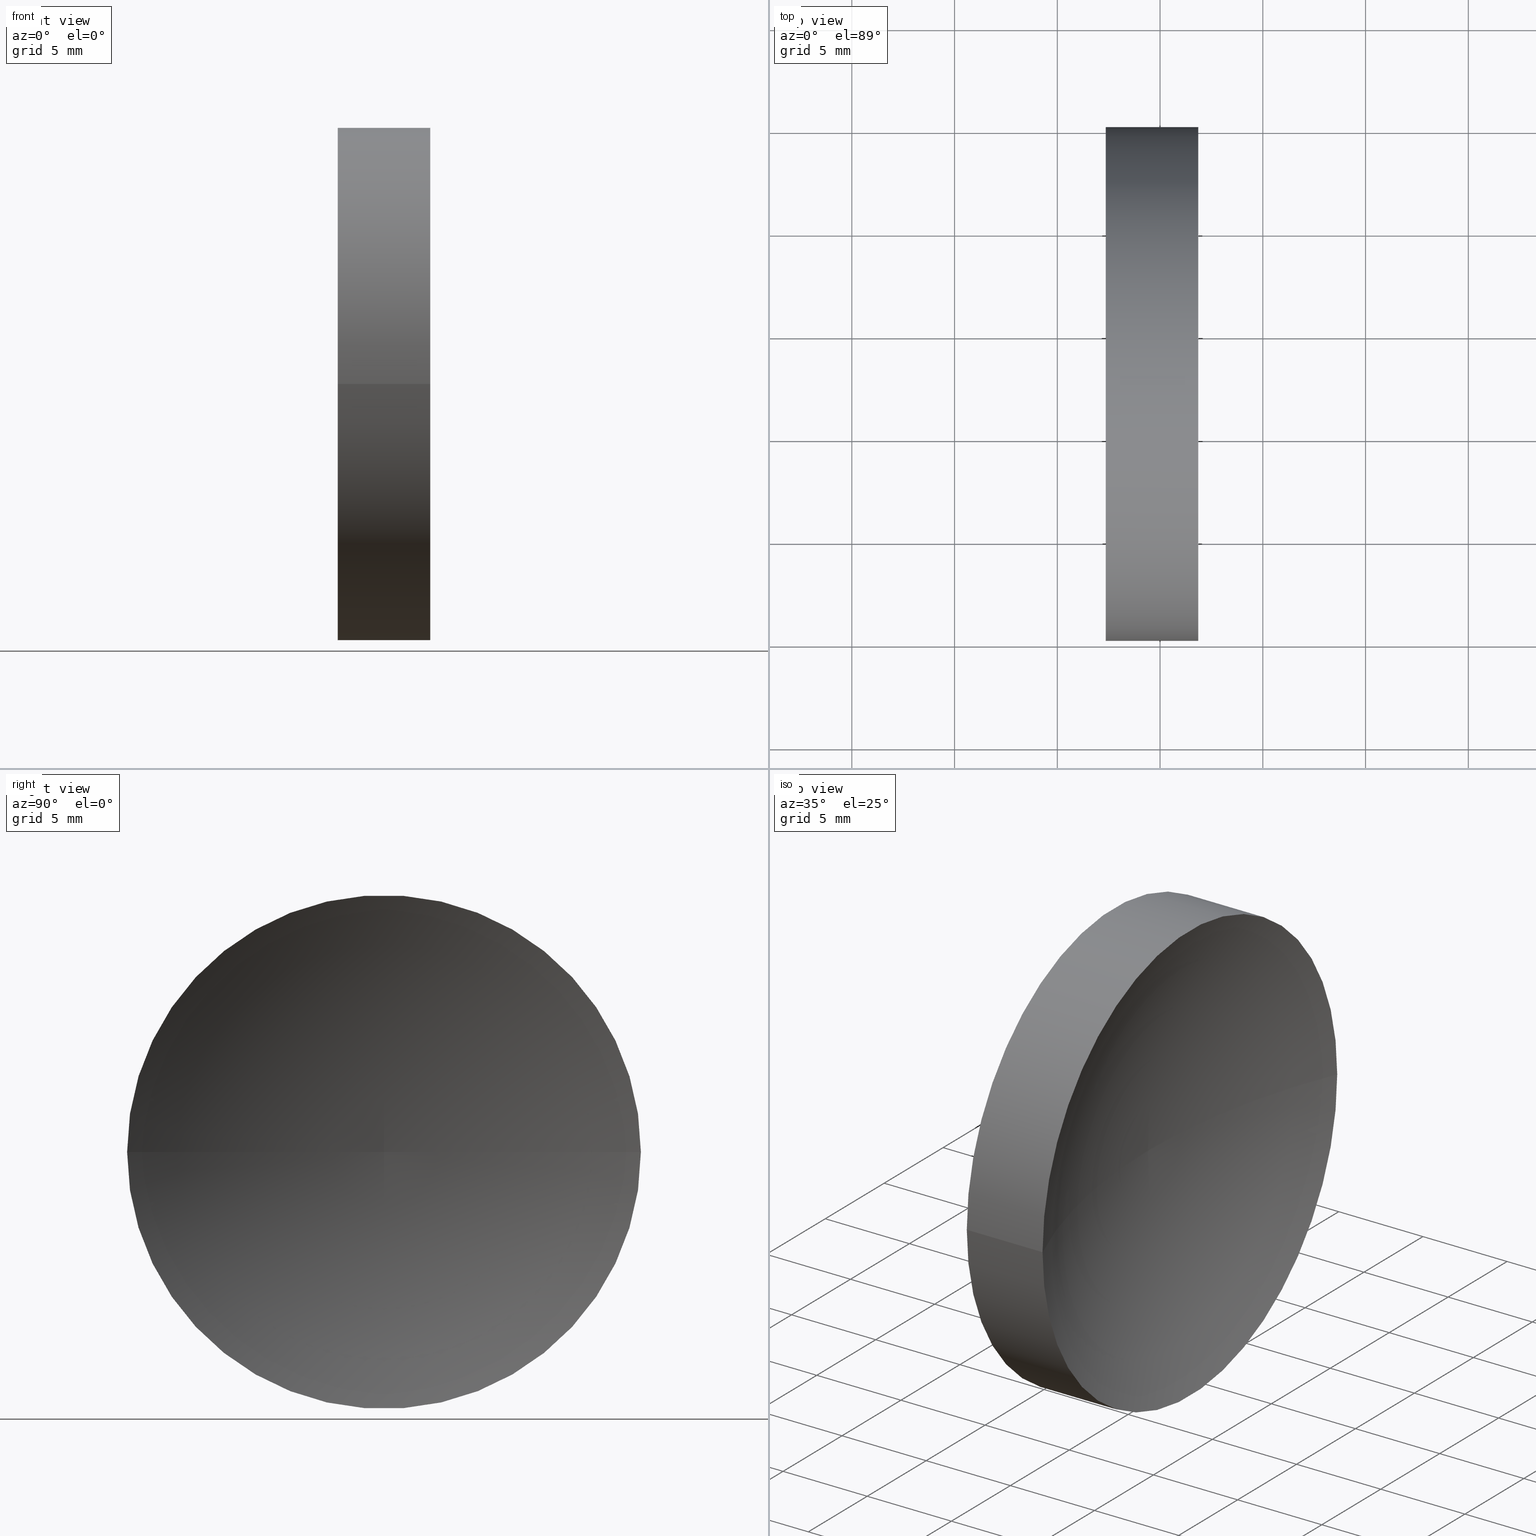
[diagram: canonical four-view strip — front | top / right | iso, engineering-drawing reading convention]
A machine part, canonical four-view strip (front | top / right | iso — engineering-drawing reading convention). The complete STEP part file that produces these views, byte-faithful:
ISO-10303-21;
HEADER;
FILE_DESCRIPTION (( 'STEP AP214' ),
    '1' );
FILE_NAME ('120153.STEP',
    '2019-06-20T06:08:24',
    ( '' ),
    ( '' ),
    'SwSTEP 2.0',
    'SolidWorks 2016',
    '' );
FILE_SCHEMA (( 'AUTOMOTIVE_DESIGN' ));
ENDSEC;

DATA;
#1 = CARTESIAN_POINT ( 'NONE',  ( 61.85821049369445700, 20.07872591329309100, 0.0000000000000000000 ) ) ;
#2 = EDGE_CURVE ( 'NONE', #46, #77, #115, .T. ) ;
#3 = CLOSED_SHELL ( 'NONE', ( #137, #81, #49, #32, #92 ) ) ;
#4 = AXIS2_PLACEMENT_3D ( 'NONE', #96, #87, #142 ) ;
#5 = ORIENTED_EDGE ( 'NONE', *, *, #2, .F. ) ;
#6 = AXIS2_PLACEMENT_3D ( 'NONE', #88, #125, #156 ) ;
#7 = DIRECTION ( 'NONE',  ( -1.000000000000000000, 0.0000000000000000000, 0.0000000000000000000 ) ) ;
#8 =( NAMED_UNIT ( * ) SI_UNIT ( $, .STERADIAN. ) SOLID_ANGLE_UNIT ( ) );
#9 = SURFACE_STYLE_FILL_AREA ( #41 ) ;
#10 = CARTESIAN_POINT ( 'NONE',  ( 55.00739462442117400, 20.07872591329309500, 0.0000000000000000000 ) ) ;
#11 = CARTESIAN_POINT ( 'NONE',  ( 57.35819015802111700, 32.57872591329309100, 0.0000000000000000000 ) ) ;
#12 = DIRECTION ( 'NONE',  ( -1.000000000000000000, 4.853228644174421400E-016, -0.0000000000000000000 ) ) ;
#13 = UNCERTAINTY_MEASURE_WITH_UNIT (LENGTH_MEASURE( 1.000000000000000100E-005 ), #25, 'distance_accuracy_value', 'NONE');
#14 = DIRECTION ( 'NONE',  ( 4.853228644174421400E-016, 1.000000000000000000, 0.0000000000000000000 ) ) ;
#15 = UNCERTAINTY_MEASURE_WITH_UNIT (LENGTH_MEASURE( 1.000000000000000100E-005 ), #83, 'distance_accuracy_value', 'NONE');
#16 = CIRCLE ( 'NONE', #131, 12.50000000000000700 ) ;
#17 = EDGE_CURVE ( 'NONE', #117, #138, #35, .T. ) ;
#18 = ORIENTED_EDGE ( 'NONE', *, *, #136, .T. ) ;
#19 = COLOUR_RGB ( '',1.000000000000000000, 1.000000000000000000, 1.000000000000000000 ) ;
#20 =( GEOMETRIC_REPRESENTATION_CONTEXT ( 3 ) GLOBAL_UNCERTAINTY_ASSIGNED_CONTEXT ( ( #13 ) ) GLOBAL_UNIT_ASSIGNED_CONTEXT ( ( #25, #110, #127 ) ) REPRESENTATION_CONTEXT ( 'NONE', 'WORKASPACE' ) );
#21 = DIRECTION ( 'NONE',  ( 0.0000000000000000000, -0.0000000000000000000, -1.000000000000000000 ) ) ;
#22 = DIRECTION ( 'NONE',  ( -5.551115123125784700E-016, -1.000000000000000000, 0.0000000000000000000 ) ) ;
#23 = CARTESIAN_POINT ( 'NONE',  ( 61.85821049369445700, 32.57872591329309800, 0.0000000000000000000 ) ) ;
#24 = PRODUCT_DEFINITION ( 'δ֪', '', #90, #129 ) ;
#25 =( LENGTH_UNIT ( ) NAMED_UNIT ( * ) SI_UNIT ( .MILLI., .METRE. ) );
#26 = SURFACE_SIDE_STYLE ('',( #9 ) ) ;
#27 = AXIS2_PLACEMENT_3D ( 'NONE', #119, #105, #52 ) ;
#28 = ORIENTED_EDGE ( 'NONE', *, *, #153, .F. ) ;
#29 = AXIS2_PLACEMENT_3D ( 'NONE', #63, #124, #95 ) ;
#30 = FACE_OUTER_BOUND ( 'NONE', #159, .T. ) ;
#31 = ORIENTED_EDGE ( 'NONE', *, *, #157, .F. ) ;
#32 = ADVANCED_FACE ( 'NONE', ( #122 ), #70, .T. ) ;
#33 = DIRECTION ( 'NONE',  ( -4.853228644174421400E-016, -1.000000000000000000, 0.0000000000000000000 ) ) ;
#34 = STYLED_ITEM ( 'NONE', ( #43 ), #45 ) ;
#35 = CIRCLE ( 'NONE', #61, 32.50000000000000000 ) ;
#36 = FACE_OUTER_BOUND ( 'NONE', #160, .T. ) ;
#37 = DIRECTION ( 'NONE',  ( -1.000000000000000000, 4.853228644174421400E-016, -0.0000000000000000000 ) ) ;
#38 = PRODUCT_DEFINITION_SHAPE ( 'NONE', 'NONE',  #24 ) ;
#39 = APPLICATION_PROTOCOL_DEFINITION ( 'draft international standard', 'automotive_design', 1998, #166 ) ;
#40 = CARTESIAN_POINT ( 'NONE',  ( 57.35819015802110200, 20.07872591329309800, 0.0000000000000000000 ) ) ;
#41 = FILL_AREA_STYLE ('',( #164 ) ) ;
#42 = ORIENTED_EDGE ( 'NONE', *, *, #104, .F. ) ;
#43 = PRESENTATION_STYLE_ASSIGNMENT (( #161 ) ) ;
#44 = VECTOR ( 'NONE', #99, 1000.000000000000000 ) ;
#45 = MANIFOLD_SOLID_BREP ( '��ת1', #3 ) ;
#46 = VERTEX_POINT ( 'NONE', #107 ) ;
#47 =( GEOMETRIC_REPRESENTATION_CONTEXT ( 3 ) GLOBAL_UNCERTAINTY_ASSIGNED_CONTEXT ( ( #15 ) ) GLOBAL_UNIT_ASSIGNED_CONTEXT ( ( #83, #74, #139 ) ) REPRESENTATION_CONTEXT ( 'NONE', 'WORKASPACE' ) );
#48 = STYLED_ITEM ( 'NONE', ( #152 ), #103 ) ;
#49 = ADVANCED_FACE ( 'NONE', ( #30 ), #72, .F. ) ;
#50 = FILL_AREA_STYLE ('',( #85 ) ) ;
#51 = VERTEX_POINT ( 'NONE', #149 ) ;
#52 = DIRECTION ( 'NONE',  ( -5.551115123125784700E-016, -1.000000000000000000, 0.0000000000000000000 ) ) ;
#53 = ORIENTED_EDGE ( 'NONE', *, *, #17, .F. ) ;
#54 =( LENGTH_UNIT ( ) NAMED_UNIT ( * ) SI_UNIT ( .MILLI., .METRE. ) );
#55 = CARTESIAN_POINT ( 'NONE',  ( 0.0000000000000000000, 0.0000000000000000000, 0.0000000000000000000 ) ) ;
#56 = DIRECTION ( 'NONE',  ( -1.000000000000000000, 4.853228644174421400E-016, -0.0000000000000000000 ) ) ;
#57 = PLANE ( 'NONE',  #163 ) ;
#58 = LINE ( 'NONE', #10, #102 ) ;
#59 = EDGE_CURVE ( 'NONE', #77, #46, #123, .T. ) ;
#60 = ORIENTED_EDGE ( 'NONE', *, *, #153, .T. ) ;
#61 = AXIS2_PLACEMENT_3D ( 'NONE', #84, #21, #7 ) ;
#62 = COLOUR_RGB ( '',1.000000000000000000, 1.000000000000000000, 1.000000000000000000 ) ;
#63 = CARTESIAN_POINT ( 'NONE',  ( 55.00739462442118100, 32.57872591329309800, 0.0000000000000000000 ) ) ;
#64 = CARTESIAN_POINT ( 'NONE',  ( 91.85819015802110200, 32.57867710778884200, -5.976950454606206000E-021 ) ) ;
#65 = DIRECTION ( 'NONE',  ( 0.0000000000000000000, 0.0000000000000000000, 1.000000000000000000 ) ) ;
#66 = MECHANICAL_DESIGN_GEOMETRIC_PRESENTATION_REPRESENTATION (  '', ( #34 ), #47 ) ;
#67 = DIRECTION ( 'NONE',  ( -1.000000000000000000, 4.853228644174421400E-016, -0.0000000000000000000 ) ) ;
#68 = ORIENTED_EDGE ( 'NONE', *, *, #59, .F. ) ;
#69 = SHAPE_DEFINITION_REPRESENTATION ( #38, #103 ) ;
#70 = CYLINDRICAL_SURFACE ( 'NONE', #29, 12.50000000000000000 ) ;
#71 = PRESENTATION_LAYER_ASSIGNMENT (  '', '', ( #34 ) ) ;
#72 = TOROIDAL_SURFACE ( 'NONE', #73, -4.880550423818191400E-005, 32.50000000000000000 ) ;
#73 = AXIS2_PLACEMENT_3D ( 'NONE', #120, #37, #33 ) ;
#74 =( NAMED_UNIT ( * ) PLANE_ANGLE_UNIT ( ) SI_UNIT ( $, .RADIAN. ) );
#75 = CARTESIAN_POINT ( 'NONE',  ( 61.85821049369445700, 32.57872591329309800, 0.0000000000000000000 ) ) ;
#76 = DIRECTION ( 'NONE',  ( 0.0000000000000000000, -1.000000000000000000, -1.224646799147353500E-016 ) ) ;
#77 = VERTEX_POINT ( 'NONE', #40 ) ;
#78 = CARTESIAN_POINT ( 'NONE',  ( 55.00739462442118800, 45.07872591329309100, 1.530808498934191500E-015 ) ) ;
#79 = TOROIDAL_SURFACE ( 'NONE', #6, -4.880550423818191400E-005, 32.50000000000000000 ) ;
#80 = EDGE_CURVE ( 'NONE', #51, #117, #16, .T. ) ;
#81 = ADVANCED_FACE ( 'NONE', ( #116 ), #79, .F. ) ;
#82 = AXIS2_PLACEMENT_3D ( 'NONE', #55, #65, #111 ) ;
#83 =( LENGTH_UNIT ( ) NAMED_UNIT ( * ) SI_UNIT ( .MILLI., .METRE. ) );
#84 = CARTESIAN_POINT ( 'NONE',  ( 91.85819015802110200, 32.57877471879731200, 0.0000000000000000000 ) ) ;
#85 = FILL_AREA_STYLE_COLOUR ( '', #19 ) ;
#86 = CIRCLE ( 'NONE', #112, 32.50000000000000000 ) ;
#87 = DIRECTION ( 'NONE',  ( -1.000000000000000000, 4.853228644174421400E-016, -0.0000000000000000000 ) ) ;
#88 = CARTESIAN_POINT ( 'NONE',  ( 91.85819015802110200, 32.57872591329307700, 0.0000000000000000000 ) ) ;
#89 = ORIENTED_EDGE ( 'NONE', *, *, #80, .F. ) ;
#90 = PRODUCT_DEFINITION_FORMATION_WITH_SPECIFIED_SOURCE ( '�κ�', '', #132, .NOT_KNOWN. ) ;
#91 = LINE ( 'NONE', #78, #44 ) ;
#92 = ADVANCED_FACE ( 'NONE', ( #36 ), #57, .F. ) ;
#93 = ORIENTED_EDGE ( 'NONE', *, *, #17, .T. ) ;
#94 = ORIENTED_EDGE ( 'NONE', *, *, #157, .T. ) ;
#95 = DIRECTION ( 'NONE',  ( -5.551115123125782700E-016, -1.000000000000000000, 0.0000000000000000000 ) ) ;
#96 = CARTESIAN_POINT ( 'NONE',  ( 55.00739462442118100, 32.57872591329309800, 0.0000000000000000000 ) ) ;
#97 = CYLINDRICAL_SURFACE ( 'NONE', #4, 12.50000000000000000 ) ;
#98 = DIRECTION ( 'NONE',  ( -5.943490924618453600E-032, -1.224646799147353200E-016, 1.000000000000000000 ) ) ;
#99 = DIRECTION ( 'NONE',  ( -1.000000000000000000, 4.853228644174421400E-016, -0.0000000000000000000 ) ) ;
#100 = DIRECTION ( 'NONE',  ( -5.551115123125779700E-016, -1.000000000000000000, 0.0000000000000000000 ) ) ;
#101 = ORIENTED_EDGE ( 'NONE', *, *, #59, .T. ) ;
#102 = VECTOR ( 'NONE', #56, 1000.000000000000000 ) ;
#103 = ADVANCED_BREP_SHAPE_REPRESENTATION ( '120153', ( #45, #82 ), #20 ) ;
#104 = EDGE_CURVE ( 'NONE', #51, #46, #91, .T. ) ;
#105 = DIRECTION ( 'NONE',  ( -1.000000000000000000, 4.853228644174421400E-016, -0.0000000000000000000 ) ) ;
#106 =( GEOMETRIC_REPRESENTATION_CONTEXT ( 3 ) GLOBAL_UNCERTAINTY_ASSIGNED_CONTEXT ( ( #150 ) ) GLOBAL_UNIT_ASSIGNED_CONTEXT ( ( #54, #128, #8 ) ) REPRESENTATION_CONTEXT ( 'NONE', 'WORKASPACE' ) );
#107 = CARTESIAN_POINT ( 'NONE',  ( 57.35819015802111700, 45.07872591329309100, 1.530808498934191900E-015 ) ) ;
#108 = ORIENTED_EDGE ( 'NONE', *, *, #104, .T. ) ;
#109 = PRESENTATION_LAYER_ASSIGNMENT (  '', '', ( #48 ) ) ;
#110 =( NAMED_UNIT ( * ) PLANE_ANGLE_UNIT ( ) SI_UNIT ( $, .RADIAN. ) );
#111 = DIRECTION ( 'NONE',  ( 1.000000000000000000, 0.0000000000000000000, 0.0000000000000000000 ) ) ;
#112 = AXIS2_PLACEMENT_3D ( 'NONE', #64, #98, #76 ) ;
#113 = APPLICATION_CONTEXT ( 'automotive_design' ) ;
#114 = SURFACE_STYLE_USAGE ( .BOTH. , #26 ) ;
#115 = CIRCLE ( 'NONE', #27, 12.49999999999999600 ) ;
#116 = FACE_OUTER_BOUND ( 'NONE', #154, .T. ) ;
#117 = VERTEX_POINT ( 'NONE', #1 ) ;
#118 = MECHANICAL_DESIGN_GEOMETRIC_PRESENTATION_REPRESENTATION (  '', ( #48 ), #106 ) ;
#119 = CARTESIAN_POINT ( 'NONE',  ( 57.35819015802111000, 32.57872591329309800, 0.0000000000000000000 ) ) ;
#120 = CARTESIAN_POINT ( 'NONE',  ( 91.85819015802110200, 32.57872591329307700, 0.0000000000000000000 ) ) ;
#121 = SURFACE_SIDE_STYLE ('',( #151 ) ) ;
#122 = FACE_OUTER_BOUND ( 'NONE', #146, .T. ) ;
#123 = CIRCLE ( 'NONE', #148, 12.49999999999999600 ) ;
#124 = DIRECTION ( 'NONE',  ( -1.000000000000000000, 4.853228644174421400E-016, -0.0000000000000000000 ) ) ;
#125 = DIRECTION ( 'NONE',  ( -1.000000000000000000, 4.853228644174421400E-016, -0.0000000000000000000 ) ) ;
#126 = ORIENTED_EDGE ( 'NONE', *, *, #80, .T. ) ;
#127 =( NAMED_UNIT ( * ) SI_UNIT ( $, .STERADIAN. ) SOLID_ANGLE_UNIT ( ) );
#128 =( NAMED_UNIT ( * ) PLANE_ANGLE_UNIT ( ) SI_UNIT ( $, .RADIAN. ) );
#129 = PRODUCT_DEFINITION_CONTEXT ( 'detailed design', #113, 'design' ) ;
#130 = EDGE_LOOP ( 'NONE', ( #94, #108, #68, #28 ) ) ;
#131 = AXIS2_PLACEMENT_3D ( 'NONE', #23, #165, #141 ) ;
#132 = PRODUCT ( '120153', '120153', '', ( #143 ) ) ;
#133 = PRODUCT_RELATED_PRODUCT_CATEGORY ( 'part', '', ( #132 ) ) ;
#134 = AXIS2_PLACEMENT_3D ( 'NONE', #75, #12, #100 ) ;
#135 = CIRCLE ( 'NONE', #134, 12.50000000000000700 ) ;
#136 = EDGE_CURVE ( 'NONE', #51, #138, #86, .T. ) ;
#137 = ADVANCED_FACE ( 'NONE', ( #140 ), #97, .T. ) ;
#138 = VERTEX_POINT ( 'NONE', #145 ) ;
#139 =( NAMED_UNIT ( * ) SI_UNIT ( $, .STERADIAN. ) SOLID_ANGLE_UNIT ( ) );
#140 = FACE_OUTER_BOUND ( 'NONE', #130, .T. ) ;
#141 = DIRECTION ( 'NONE',  ( -5.551115123125779700E-016, -1.000000000000000000, 0.0000000000000000000 ) ) ;
#142 = DIRECTION ( 'NONE',  ( -5.551115123125782700E-016, -1.000000000000000000, 0.0000000000000000000 ) ) ;
#143 = PRODUCT_CONTEXT ( 'NONE', #166, 'mechanical' ) ;
#144 = CARTESIAN_POINT ( 'NONE',  ( 57.35819015802111000, 32.57872591329309800, 0.0000000000000000000 ) ) ;
#145 = CARTESIAN_POINT ( 'NONE',  ( 59.35819015805774500, 32.57872591329309100, 0.0000000000000000000 ) ) ;
#146 = EDGE_LOOP ( 'NONE', ( #42, #126, #60, #5 ) ) ;
#147 = ORIENTED_EDGE ( 'NONE', *, *, #136, .F. ) ;
#148 = AXIS2_PLACEMENT_3D ( 'NONE', #144, #67, #22 ) ;
#149 = CARTESIAN_POINT ( 'NONE',  ( 61.85821049369446500, 45.07872591329309800, 1.530808498934192300E-015 ) ) ;
#150 = UNCERTAINTY_MEASURE_WITH_UNIT (LENGTH_MEASURE( 1.000000000000000100E-005 ), #54, 'distance_accuracy_value', 'NONE');
#151 = SURFACE_STYLE_FILL_AREA ( #50 ) ;
#152 = PRESENTATION_STYLE_ASSIGNMENT (( #114 ) ) ;
#153 = EDGE_CURVE ( 'NONE', #117, #77, #58, .T. ) ;
#154 = EDGE_LOOP ( 'NONE', ( #89, #18, #53 ) ) ;
#155 = DIRECTION ( 'NONE',  ( 1.000000000000000000, -4.853228644174421400E-016, 0.0000000000000000000 ) ) ;
#156 = DIRECTION ( 'NONE',  ( -4.853228644174421400E-016, -1.000000000000000000, 0.0000000000000000000 ) ) ;
#157 = EDGE_CURVE ( 'NONE', #117, #51, #135, .T. ) ;
#158 = APPLICATION_PROTOCOL_DEFINITION ( 'draft international standard', 'automotive_design', 1998, #113 ) ;
#159 = EDGE_LOOP ( 'NONE', ( #147, #31, #93 ) ) ;
#160 = EDGE_LOOP ( 'NONE', ( #101, #162 ) ) ;
#161 = SURFACE_STYLE_USAGE ( .BOTH. , #121 ) ;
#162 = ORIENTED_EDGE ( 'NONE', *, *, #2, .T. ) ;
#163 = AXIS2_PLACEMENT_3D ( 'NONE', #11, #155, #14 ) ;
#164 = FILL_AREA_STYLE_COLOUR ( '', #62 ) ;
#165 = DIRECTION ( 'NONE',  ( -1.000000000000000000, 4.853228644174421400E-016, -0.0000000000000000000 ) ) ;
#166 = APPLICATION_CONTEXT ( 'automotive_design' ) ;
ENDSEC;
END-ISO-10303-21;
